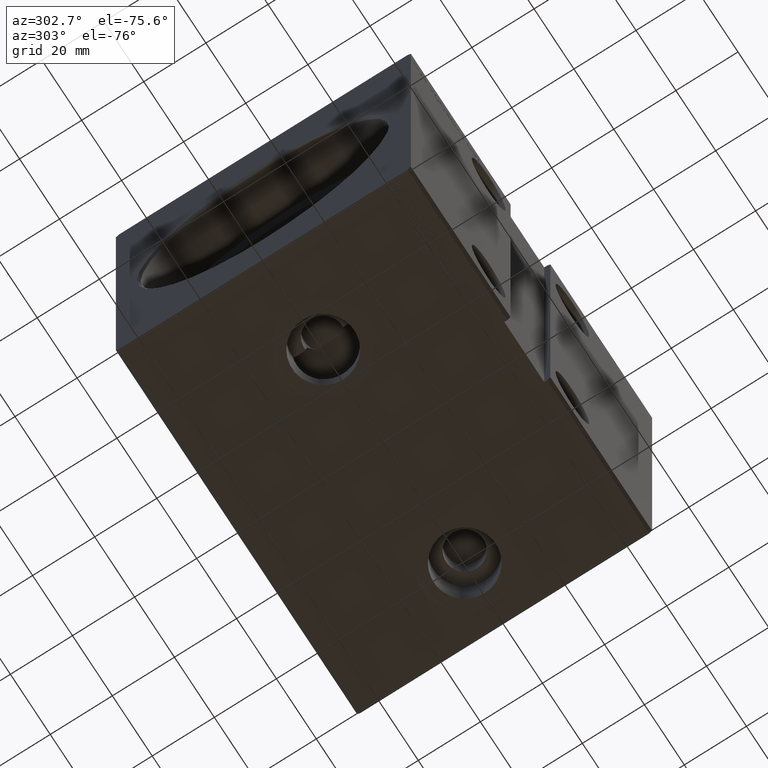
[diagram: clean part render]
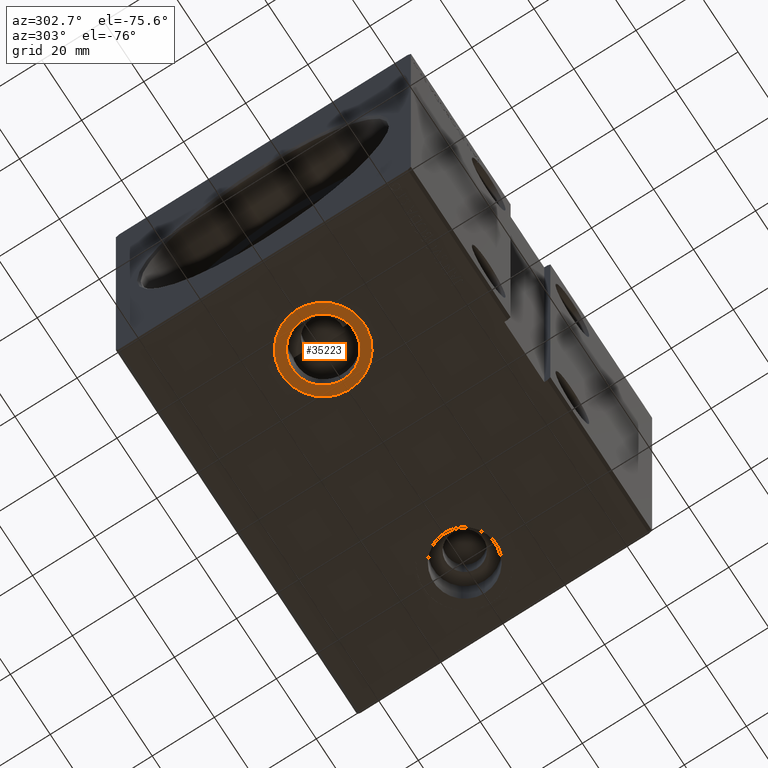
[diagram: same view with one face highlighted and labeled with its STEP entity id]
A machine part, auxiliary view. The second image highlights one B-rep face of the part: STEP entity #35223.
In plain terms, the highlighted planar face has unit normal (0, 0, -1).
Its self-contained STEP definition (entity closure, byte-faithful):
#289 = VERTEX_POINT ( 'NONE', #39032 ) ;
#1017 = VERTEX_POINT ( 'NONE', #36727 ) ;
#2109 = EDGE_CURVE ( 'NONE', #1017, #30256, #6555, .T. ) ;
#3300 = DIRECTION ( 'NONE',  ( -1.000000000000000000, 0.000000000000000000, -0.000000000000000000 ) ) ;
#3744 = ORIENTED_EDGE ( 'NONE', *, *, #4668, .T. ) ;
#4668 = EDGE_CURVE ( 'NONE', #6316, #289, #14864, .T. ) ;
#5331 = AXIS2_PLACEMENT_3D ( 'NONE', #36681, #39880, #36064 ) ;
#6124 = AXIS2_PLACEMENT_3D ( 'NONE', #11870, #24886, #10130 ) ;
#6316 = VERTEX_POINT ( 'NONE', #41067 ) ;
#6555 = CIRCLE ( 'NONE', #39202, 10.00000000000000178 ) ;
#10130 = DIRECTION ( 'NONE',  ( -1.000000000000000000, 0.000000000000000000, 0.000000000000000000 ) ) ;
#10327 = DIRECTION ( 'NONE',  ( 0.000000000000000000, 0.000000000000000000, -1.000000000000000000 ) ) ;
#10618 = ORIENTED_EDGE ( 'NONE', *, *, #2109, .F. ) ;
#11870 = CARTESIAN_POINT ( 'NONE',  ( 30.00000000000000000, 3.191269477545414310E-15, -62.39999999999999858 ) ) ;
#12931 = CIRCLE ( 'NONE', #6124, 13.24999999999999822 ) ;
#13074 = DIRECTION ( 'NONE',  ( 0.000000000000000000, 0.000000000000000000, -1.000000000000000000 ) ) ;
#14171 = ORIENTED_EDGE ( 'NONE', *, *, #19174, .F. ) ;
#14864 = CIRCLE ( 'NONE', #5331, 13.24999999999999822 ) ;
#15323 = CARTESIAN_POINT ( 'NONE',  ( 19.99999999999999645, 3.191269477545414310E-15, -62.39999999999999858 ) ) ;
#19174 = EDGE_CURVE ( 'NONE', #30256, #1017, #30825, .T. ) ;
#20379 = DIRECTION ( 'NONE',  ( -1.000000000000000000, 0.000000000000000000, 0.000000000000000000 ) ) ;
#22465 = DIRECTION ( 'NONE',  ( -1.000000000000000000, 0.000000000000000000, 0.000000000000000000 ) ) ;
#23336 = PLANE ( 'NONE',  #38063 ) ;
#24886 = DIRECTION ( 'NONE',  ( 0.000000000000000000, 0.000000000000000000, -1.000000000000000000 ) ) ;
#25441 = ORIENTED_EDGE ( 'NONE', *, *, #37976, .T. ) ;
#25754 = EDGE_LOOP ( 'NONE', ( #3744, #25441 ) ) ;
#26747 = CARTESIAN_POINT ( 'NONE',  ( 0.000000000000000000, 0.000000000000000000, -62.39999999999999858 ) ) ;
#30256 = VERTEX_POINT ( 'NONE', #15323 ) ;
#30824 = CARTESIAN_POINT ( 'NONE',  ( 30.00000000000000000, 3.191269477545414310E-15, -62.39999999999999858 ) ) ;
#30825 = CIRCLE ( 'NONE', #39660, 10.00000000000000178 ) ;
#32508 = FACE_OUTER_BOUND ( 'NONE', #25754, .T. ) ;
#35223 = ADVANCED_FACE ( 'NONE', ( #35918, #32508 ), #23336, .T. ) ;
#35918 = FACE_BOUND ( 'NONE', #42139, .T. ) ;
#36064 = DIRECTION ( 'NONE',  ( -1.000000000000000000, 0.000000000000000000, 0.000000000000000000 ) ) ;
#36681 = CARTESIAN_POINT ( 'NONE',  ( 30.00000000000000000, 3.191269477545414310E-15, -62.39999999999999858 ) ) ;
#36727 = CARTESIAN_POINT ( 'NONE',  ( 40.00000000000000000, 4.415916276692767764E-15, -62.39999999999999858 ) ) ;
#37976 = EDGE_CURVE ( 'NONE', #289, #6316, #12931, .T. ) ;
#38063 = AXIS2_PLACEMENT_3D ( 'NONE', #26747, #10327, #3300 ) ;
#38874 = CARTESIAN_POINT ( 'NONE',  ( 30.00000000000000000, 3.191269477545414310E-15, -62.39999999999999858 ) ) ;
#39032 = CARTESIAN_POINT ( 'NONE',  ( 43.25000000000000000, 4.813926486415656995E-15, -62.39999999999999858 ) ) ;
#39202 = AXIS2_PLACEMENT_3D ( 'NONE', #30824, #40196, #20379 ) ;
#39660 = AXIS2_PLACEMENT_3D ( 'NONE', #38874, #13074, #22465 ) ;
#39880 = DIRECTION ( 'NONE',  ( 0.000000000000000000, 0.000000000000000000, -1.000000000000000000 ) ) ;
#40196 = DIRECTION ( 'NONE',  ( 0.000000000000000000, 0.000000000000000000, -1.000000000000000000 ) ) ;
#41067 = CARTESIAN_POINT ( 'NONE',  ( 16.75000000000000000, 3.191269477545414310E-15, -62.39999999999999858 ) ) ;
#42139 = EDGE_LOOP ( 'NONE', ( #14171, #10618 ) ) ;